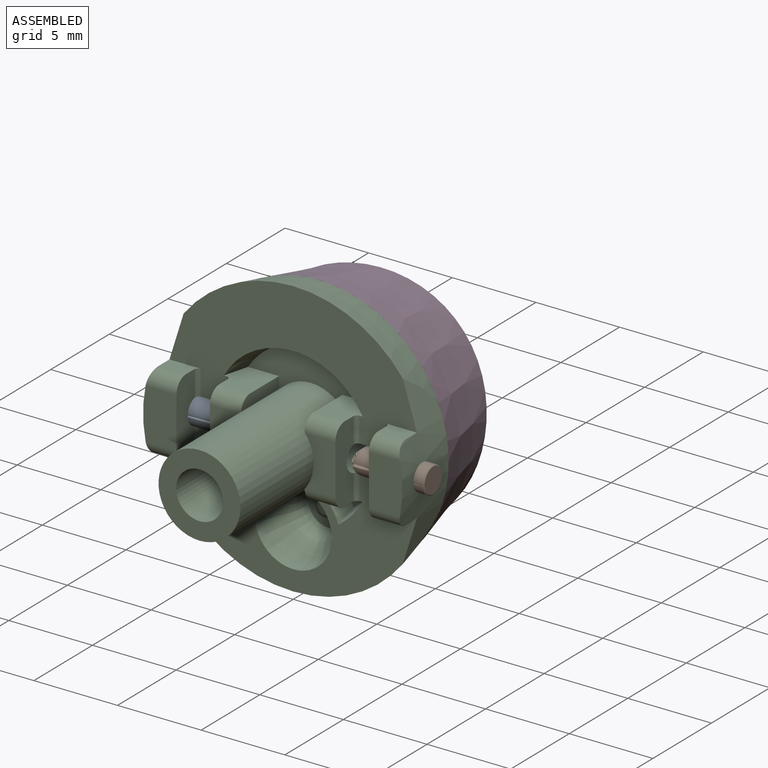
[diagram: assembled view]
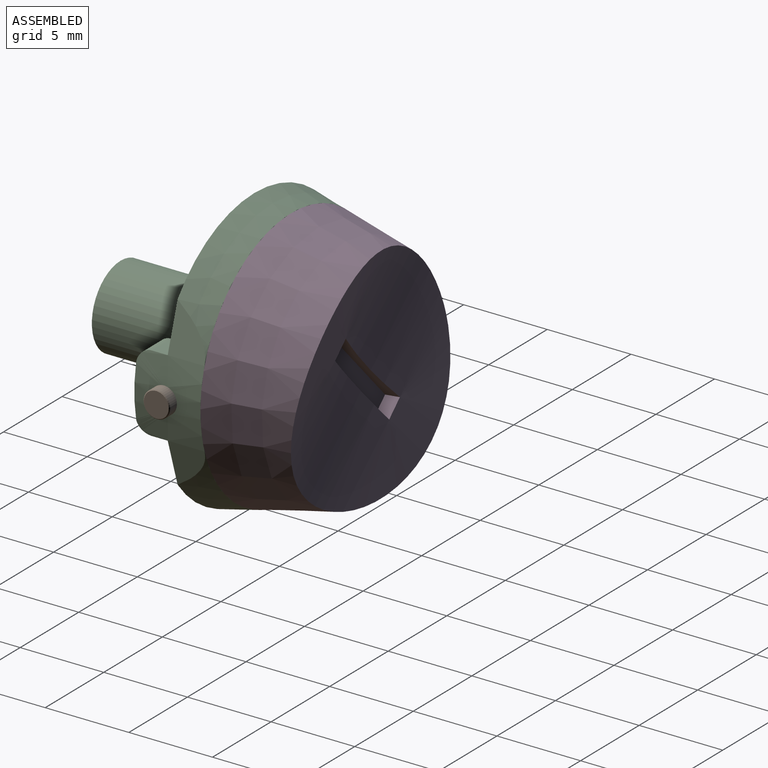
[diagram: assembled view, second angle]
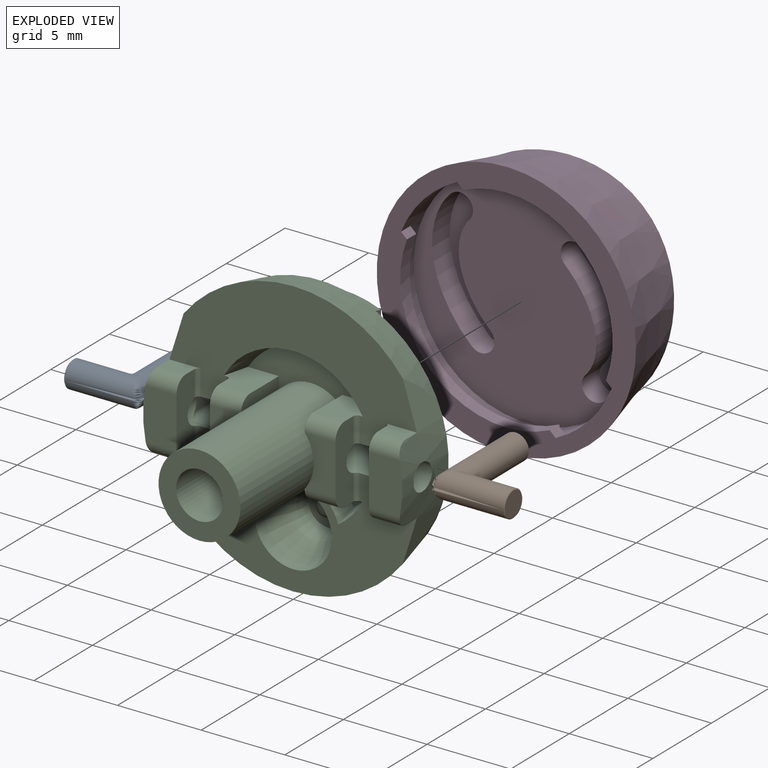
[diagram: exploded view]
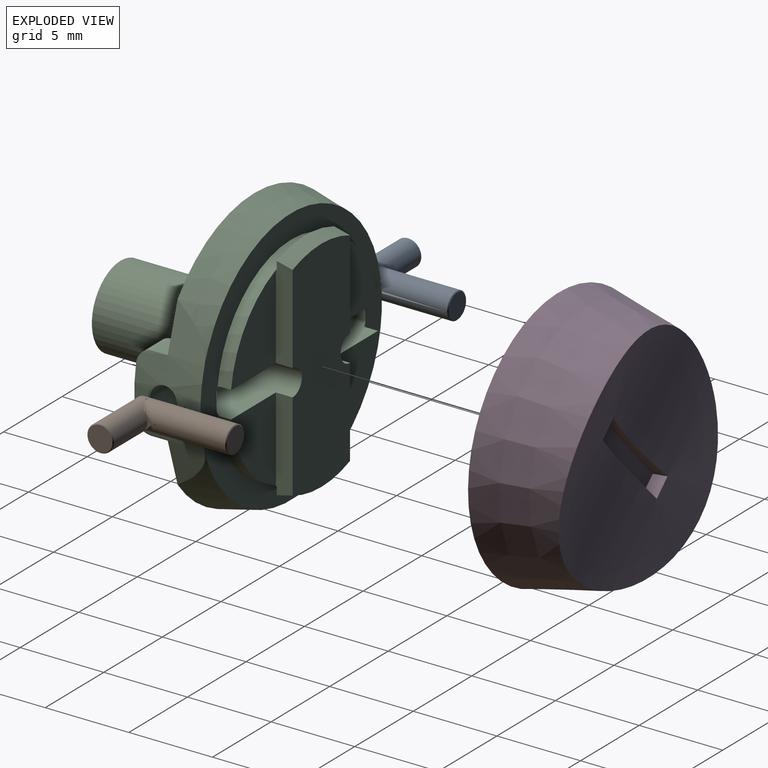
[diagram: exploded view, second angle]
ASSEMBLY  parts=4 mates=3
PART A: 15 faces, bbox 4.6x6.4x1.7 mm
  f0: cylinder r=0.79mm len=5.95mm, axis (0,1,0), area 26.2mm2, adj f1,f2,f3,f4,f9,f10,f11,f13
  f1: cylinder r=0.79mm len=0.18mm, axis (0,1,0), area 0mm2, adj f0,f5,f10
  f2: bspline ~0.96x0.96mm, area 0.3mm2, adj f0,f6,f10,f12
  f3: bspline ~0.96x0.96mm, area 0.3mm2, adj f0,f6,f11,f12
  f4: bspline ~0.35x0.35mm, area 0mm2, adj f0,f6,f11
  f5: bspline ~0.35x0.35mm, area 0mm2, adj f1,f6,f10
  f6: cylinder r=0.79mm len=4.14mm, axis (-1,0,0), area 17.5mm2, adj f2,f3,f4,f5,f9,f12,f14
  f7: plane 1.49x1.49mm, normal (-1,0,0), area 1.7mm2, adj f14
  f8: plane 1.49x1.49mm, normal (0,1,0), area 1.7mm2, adj f13
  f9: bspline ~1.59x0.79mm, area 0mm2, adj f0,f6
  f10: cylinder r=0.03mm len=0.47mm, axis (1,0,0), area 0mm2, adj f0,f1,f2,f5
  f11: cylinder r=0.03mm len=0.47mm, axis (1,0,0), area 0mm2, adj f0,f3,f4
  f12: plane 1.2x0.63mm, normal (-1,0,0), area 0.1mm2, adj f2,f3,f6
  f13: cone r=0.79mm half-angle=45deg, axis (0,-1,0), area 0.3mm2, adj f0,f8
  f14: cone r=0.79mm half-angle=45deg, axis (1,0,0), area 0.3mm2, adj f6,f7
PART B: same geometry as A
PART C: 124 faces, bbox 16.7x12.9x17.4 mm
  f0: plane 5.04x3.83mm, normal (0,1,0), area 13.3mm2, adj f1,f122,f123
  f1: plane 5.54x1mm, normal (1,0,0), area 5.4mm2, adj f0,f2,f3,f4,f117,f118,f119
  f2: plane 0.03x0.01mm, normal (0,-1,0), area 0mm2, adj f1,f3,f123
  f3: plane 0.05x0.02mm, normal (-0.92,0,0.39), area 0mm2, adj f1,f2,f4,f123
  f4: plane 5.35x1.4mm, normal (0,-1,0), area 2.2mm2, adj f1,f3,f5,f7,f116,f117,f123
  f5: plane 0.05x0.02mm, normal (0.92,0,0.39), area 0mm2, adj f4,f6,f7,f123
  f6: plane 0.03x0.01mm, normal (0,-1,0), area 0mm2, adj f5,f7,f123
  f7: plane 5.54x1mm, normal (-1,0,0), area 5.4mm2, adj f4,f5,f6,f8,f115,f117,f118
  f8: plane 5.04x3.83mm, normal (0,1,0), area 13.3mm2, adj f7,f9,f123
  f9: plane 3.83x2.77mm, normal (0,0,-1), area 10.1mm2, adj f8,f10,f113,f114,f115,f123
  f10: cylinder r=0.03mm len=3.92mm, axis (1,0,0), area 0.3mm2, adj f9,f11,f112,f114,f115
  f11: cylinder r=0.3mm len=0.19mm, axis (0,-1,0), area 0mm2, adj f10,f12,f112
  f12: cylinder r=0.79mm len=2.21mm, axis (-1,0,0), area 8.5mm2, adj f11,f13,f105,f106,f107,f108,f109,f110
  f13: cylinder r=0.3mm len=0.19mm, axis (0,1,0), area 0mm2, adj f12,f14,f110
  f14: cylinder r=0.03mm len=3.92mm, axis (1,0,0), area 0.3mm2, adj f13,f15,f105,f110,f115
  f15: plane 3.83x2.77mm, normal (0,0,1), area 10.1mm2, adj f14,f16,f103,f104,f105,f115
  f16: plane 5.04x3.83mm, normal (0,1,0), area 13.3mm2, adj f15,f17,f104
  f17: plane 5.54x1mm, normal (-1,0,0), area 5.4mm2, adj f16,f18,f19,f20,f102,f115,f118
  f18: plane 0.03x0.01mm, normal (0,-1,0), area 0mm2, adj f17,f19,f104
  f19: plane 0.05x0.02mm, normal (0.92,0,-0.39), area 0mm2, adj f17,f18,f20,f104
  f20: plane 5.35x1.4mm, normal (0,-1,0), area 2.2mm2, adj f17,f19,f21,f23,f101,f102,f104
  f21: plane 0.05x0.02mm, normal (-0.92,0,-0.39), area 0mm2, adj f20,f22,f23,f104
  f22: plane 0.03x0.01mm, normal (0,-1,0), area 0mm2, adj f21,f23,f104
  f23: plane 5.54x1mm, normal (1,0,0), area 5.4mm2, adj f20,f21,f22,f24,f102,f118,f119
  f24: plane 5.04x3.83mm, normal (0,1,0), area 13.3mm2, adj f23,f25,f104
  f25: plane 3.83x3mm, normal (0,0,1), area 11mm2, adj f24,f26,f89,f93,f97,f99,f100,f104
  f26: cylinder r=0.79mm len=2.21mm, axis (1,0,0), area 8.6mm2, adj f25,f27,f84,f85,f86,f87,f88,f100
  f27: cylinder r=0.25mm len=1.56mm, axis (0,0,-1), area 0.6mm2, adj f26,f28,f33,f88
  f28: plane 1.9x0.96mm, normal (0,0,1), area 1.6mm2, adj f27,f29,f33,f84,f88
  f29: cylinder r=0.79mm len=1.85mm, axis (-1,0,0), area 2.2mm2, adj f28,f30,f84,f88
  f30: plane 3.03x2mm, normal (0,-1,0), area 5.9mm2, adj f29,f31,f84,f88
  f31: cylinder r=0.79mm len=1.85mm, axis (1,0,0), area 2.2mm2, adj f30,f32,f84,f88
  f32: plane 1.9x0.96mm, normal (0,0,-1), area 1.6mm2, adj f31,f84,f87,f88,f89
  f33: plane 14.8x7.46mm, normal (0,-1,0), area 57.5mm2, adj f27,f28,f34,f67,f68,f69,f70,f71
  f34: cylinder r=0.25mm len=1.56mm, axis (0,0,-1), area 0.6mm2, adj f33,f35,f67,f93
  f35: plane 4.62x1.5mm, normal (1,0,0), area 6.1mm2, adj f34,f36,f37,f64,f65,f66,f67,f93
  f36: cylinder r=0.25mm len=1.56mm, axis (0,0,-1), area 0.6mm2, adj f35,f37,f89,f93
  f37: plane 2.47x2.26mm, normal (0,0,-1), area 4.9mm2, adj f35,f36,f38,f62,f63,f64,f89
  f38: cone r=4.75mm half-angle=12.8deg, axis (0,-1,0), area 3mm2, adj f37,f39,f62,f89
  f39: cylinder r=2.82mm len=1.74mm, axis (0,-1,0), area 3.3mm2, adj f38,f40,f62,f89
  f40: cylinder r=2.45mm len=9.5mm, axis (0,-1,0), area 120.9mm2, adj f39,f41,f50,f51,f52,f53,f54,f55
  f41: cylinder r=2.82mm len=1.74mm, axis (0,-1,0), area 3.3mm2, adj f40,f42,f50,f89
  f42: cone r=4.75mm half-angle=12.8deg, axis (0,-1,0), area 3mm2, adj f41,f43,f50,f89
  f43: plane 2.47x2.26mm, normal (0,0,-1), area 4.9mm2, adj f42,f44,f49,f50,f51,f52,f89
  f44: cylinder r=0.25mm len=1.56mm, axis (0,0,-1), area 0.6mm2, adj f43,f45,f49,f89
  f45: cylinder r=0.79mm len=2.05mm, axis (-1,0,0), area 4.1mm2, adj f44,f46,f47,f48,f49,f70,f110,f112
  f46: cylinder r=2.45mm len=0.33mm, axis (0,-1,0), area 0mm2, adj f45,f47,f115
  f47: bspline ~1.59x0.76mm, area 0.8mm2, adj f45,f46,f48,f115
  f48: cylinder r=2.45mm len=0.33mm, axis (0,-1,0), area 0mm2, adj f45,f47,f115
  f49: plane 4.62x1.5mm, normal (-1,0,0), area 6.1mm2, adj f43,f44,f45,f52,f53,f54,f69,f70
  f50: plane 2.62x2.04mm, normal (0,-1,0), area 1.7mm2, adj f40,f41,f42,f43,f51
  f51: plane 3.25x0.76mm, normal (1,0,0), area 2.3mm2, adj f40,f43,f50,f52
  f52: cylinder r=0.79mm len=1.85mm, axis (-1,0,0), area 2.3mm2, adj f40,f43,f49,f51,f53
  f53: plane 3.03x1.83mm, normal (0,-1,0), area 4.4mm2, adj f40,f49,f52,f54
  f54: cylinder r=0.79mm len=1.85mm, axis (1,0,0), area 2.3mm2, adj f40,f49,f53,f55,f69
  f55: plane 3.25x0.76mm, normal (1,0,0), area 2.3mm2, adj f40,f54,f56,f69
  f56: plane 7.51x2.86mm, normal (0,-1,0), area 11.7mm2, adj f40,f55,f57,f67,f68,f69
  f57: plane 3.25x0.76mm, normal (-1,0,0), area 2.3mm2, adj f40,f56,f66,f67
  f58: plane 4.9x4.9mm, normal (0,-1,0), area 12.7mm2, adj f40,f59
  f59: cylinder r=1.4mm len=9.4mm, axis (0,-1,0), area 82.7mm2, adj f58,f60
  f60: plane 2.8x2.8mm, normal (0,-1,0), area 5mm2, adj f59,f61
  f61: sphere r=0.6mm, area 2.3mm2, adj f60
  f62: plane 2.62x2.04mm, normal (0,-1,0), area 1.7mm2, adj f37,f38,f39,f40,f63
  f63: plane 3.25x0.76mm, normal (-1,0,0), area 2.3mm2, adj f37,f40,f62,f64
  f64: cylinder r=0.79mm len=1.85mm, axis (1,0,0), area 2.3mm2, adj f35,f37,f40,f63,f65
  f65: plane 3.03x1.83mm, normal (0,-1,0), area 4.4mm2, adj f35,f40,f64,f66
  f66: cylinder r=0.79mm len=1.85mm, axis (-1,0,0), area 2.3mm2, adj f35,f40,f57,f65,f67
  f67: plane 2.47x2.26mm, normal (0,0,1), area 4.9mm2, adj f33,f34,f35,f56,f57,f66,f68
  f68: cone r=4.75mm half-angle=12.8deg, axis (0,-1,0), area 14.7mm2, adj f33,f56,f67,f69
  f69: plane 2.47x2.26mm, normal (0,0,1), area 4.9mm2, adj f33,f49,f54,f55,f56,f68,f70
  f70: cylinder r=0.25mm len=1.56mm, axis (0,0,-1), area 0.6mm2, adj f33,f45,f49,f69
  f71: plane 1.9x0.96mm, normal (0,0,1), area 1.6mm2, adj f33,f72,f107,f108,f111
  f72: cylinder r=0.79mm len=1.85mm, axis (1,0,0), area 2.2mm2, adj f71,f73,f108,f111
  f73: plane 3.03x2mm, normal (0,-1,0), area 5.9mm2, adj f72,f74,f108,f111
  f74: cylinder r=0.79mm len=1.85mm, axis (-1,0,0), area 2.2mm2, adj f73,f75,f108,f111
  f75: plane 1.9x0.96mm, normal (0,0,-1), area 1.6mm2, adj f74,f89,f108,f109,f111
  f76: plane 3.61x3.11mm, normal (-0.95,0,0.3), area 4.1mm2, adj f33,f77,f111
  f77: cone r=7mm half-angle=12.8deg, axis (0,-1,0), area 39.4mm2, adj f33,f76,f78,f83
  f78: plane 15.5x15.5mm, normal (0,1,0), area 62.9mm2, adj f77,f79,f82,f84,f85,f86,f99,f100
  f79: cone r=7mm half-angle=12.8deg, axis (0,-1,0), area 39.4mm2, adj f78,f80,f81,f89
  f80: plane 3.61x3.11mm, normal (-0.95,0,-0.3), area 4.1mm2, adj f79,f89,f111
  f81: plane 3.61x3.11mm, normal (0.95,0,-0.3), area 4.1mm2, adj f79,f84,f89
  f82: cylinder r=0.1mm len=0.24mm, axis (-1,0,0), area 0mm2, adj f78,f85,f122,f123
  f83: plane 3.61x3.11mm, normal (0.95,0,0.3), area 4.1mm2, adj f33,f77,f84
  f84: cylinder r=7.75mm len=4.62mm, axis (0,1,0), area 15.9mm2, adj f26,f28,f29,f30,f31,f32,f78,f81
  f85: cylinder r=0.3mm len=2.3mm, axis (0,1,0), area 0.9mm2, adj f26,f78,f82,f86,f122
  f86: plane 1.58x0.99mm, normal (-1,0,0), area 1.4mm2, adj f26,f78,f85,f100
  f87: cylinder r=0.25mm len=1.56mm, axis (0,0,-1), area 0.6mm2, adj f26,f32,f88,f89
  f88: plane 4.62x1.5mm, normal (-1,0,0), area 6.1mm2, adj f26,f27,f28,f29,f30,f31,f32,f87
  f89: plane 14.8x7.46mm, normal (0,-1,0), area 51mm2, adj f25,f32,f36,f37,f38,f39,f40,f41
  f90: revolved ~4.6x4.6mm, area 36.4mm2, adj f89,f91
  f91: plane 2.4x2.4mm, normal (0,-1,0), area 3.4mm2, adj f90,f92
  f92: sphere r=0.6mm, area 2.3mm2, adj f91
  f93: cylinder r=0.79mm len=2.05mm, axis (1,0,0), area 4.1mm2, adj f25,f34,f35,f36,f94,f95,f96,f119
  f94: cylinder r=2.45mm len=0.33mm, axis (0,-1,0), area 0mm2, adj f93,f95,f119
  f95: bspline ~1.59x0.76mm, area 0.8mm2, adj f93,f94,f96,f119
  f96: cylinder r=2.45mm len=0.33mm, axis (0,-1,0), area 0mm2, adj f93,f95,f119
  f97: plane 0.05x0.03mm, normal (1,0,0), area 0mm2, adj f25,f98
  f98: cylinder r=0.03mm len=0.2mm, axis (-1,0,0), area 0mm2, adj f97,f119
  f99: cylinder r=0.1mm len=0.24mm, axis (1,0,0), area 0mm2, adj f25,f78,f100,f104
  f100: cylinder r=0.3mm len=2.3mm, axis (0,-1,0), area 0.9mm2, adj f25,f26,f78,f86,f99
  f101: revolved ~0.4x0.15mm, area 0.1mm2, adj f20
  f102: cone r=6.57mm half-angle=12.8deg, axis (0,-1,0), area 4.9mm2, adj f17,f20,f23,f118
  f103: cylinder r=0.1mm len=0.24mm, axis (-1,0,0), area 0mm2, adj f15,f78,f104,f105
  f104: cylinder r=6.33mm len=12.57mm, axis (0,1,0), area 14.9mm2, adj f15,f16,f18,f19,f20,f21,f22,f24
  f105: cylinder r=0.3mm len=2.11mm, axis (0,1,0), area 0.9mm2, adj f12,f14,f15,f78,f103,f106
  f106: plane 1.58x0.99mm, normal (1,0,0), area 1.4mm2, adj f12,f78,f105,f114
  f107: cylinder r=0.25mm len=1.56mm, axis (0,0,-1), area 0.6mm2, adj f12,f33,f71,f108
  f108: plane 4.62x1.5mm, normal (1,0,0), area 6.1mm2, adj f12,f71,f72,f73,f74,f75,f107,f109
  f109: cylinder r=0.25mm len=1.56mm, axis (0,0,-1), area 0.6mm2, adj f12,f75,f89,f108
  f110: plane 3.6x0.18mm, normal (0,0,1), area 0.6mm2, adj f12,f13,f14,f45,f89,f115
  f111: cylinder r=7.75mm len=4.62mm, axis (0,1,0), area 15.9mm2, adj f12,f71,f72,f73,f74,f75,f76,f78
  f112: plane 3.6x0.18mm, normal (0,0,-1), area 0.6mm2, adj f10,f11,f12,f33,f45,f115
  f113: cylinder r=0.1mm len=0.24mm, axis (1,0,0), area 0mm2, adj f9,f78,f114,f123
  f114: cylinder r=0.3mm len=2.11mm, axis (0,-1,0), area 0.9mm2, adj f9,f10,f12,f78,f106,f113
  f115: cylinder r=0.79mm len=4.5mm, axis (0,1,0), area 10.7mm2, adj f7,f9,f10,f14,f15,f17,f45,f46
  f116: revolved ~0.4x0.15mm, area 0.1mm2, adj f4
  f117: cone r=6.57mm half-angle=12.8deg, axis (0,-1,0), area 4.9mm2, adj f1,f4,f7,f118
  f118: plane 13.14x4.9mm, normal (0,1,0), area 60.9mm2, adj f1,f7,f17,f23,f102,f115,f117,f119
  f119: cylinder r=0.79mm len=4.5mm, axis (0,1,0), area 10.7mm2, adj f1,f23,f25,f93,f94,f95,f96,f98
  f120: cylinder r=0.03mm len=0.2mm, axis (-1,0,0), area 0mm2, adj f119,f121
  f121: plane 0.05x0.03mm, normal (1,0,0), area 0mm2, adj f120,f122
  f122: plane 3.83x3mm, normal (0,0,-1), area 11mm2, adj f0,f26,f33,f82,f85,f93,f119,f121
  f123: cylinder r=6.33mm len=12.57mm, axis (0,1,0), area 14.9mm2, adj f0,f2,f3,f4,f5,f6,f8,f9
PART D: 35 faces, bbox 15.8x5.6x15.8 mm
  f0: revolved ~0.38x0.14mm, area 0mm2, adj f3,f32,f34
  f1: revolved ~0.38x0.3mm, area 0.1mm2, adj f2,f5,f33
  f2: plane 12.85x4.51mm, normal (0,1,0), area 4mm2, adj f1,f5,f13,f17,f18,f20,f33
  f3: plane 12.98x4.64mm, normal (0,1,0), area 4mm2, adj f0,f4,f14,f17,f19,f21,f32,f34
  f4: revolved ~0.39x0.25mm, area 11222222.2mm2, adj f3,f32
  f5: revolved ~0.38x0.29mm, area 0.1mm2, adj f1,f2
  f6: bspline ~4.76x3.26mm, area 9.5mm2, adj f8,f9,f15,f25
  f7: bspline ~6.35x4.85mm, area 13.3mm2, adj f8,f9,f15,f25
  f8: cylinder r=0.79mm len=1.59mm, axis (0,-1,0), area 3.7mm2, adj f6,f7,f15,f25
  f9: cylinder r=0.79mm len=1.59mm, axis (0,-1,0), area 3.7mm2, adj f6,f7,f15,f25
  f10: cylinder r=0.79mm len=1.59mm, axis (0,-1,0), area 3.7mm2, adj f15,f22,f23,f24
  f11: cylinder r=0.79mm len=1.59mm, axis (0,-1,0), area 3.7mm2, adj f15,f22,f23,f24
  f12: plane 15.5x15.5mm, normal (0,-1,0), area 57.5mm2, adj f13,f14,f16,f17,f18,f19,f20,f21
  f13: cylinder r=6.35mm len=11.72mm, axis (0,1,0), area 11.9mm2, adj f2,f12,f18,f20
  f14: cylinder r=6.35mm len=11.72mm, axis (0,1,0), area 11.9mm2, adj f3,f12,f19,f21
  f15: plane 13.6x13.6mm, normal (0,-1,0), area 117.1mm2, adj f6,f7,f8,f9,f10,f11,f17,f22
  f16: cone r=7.75mm half-angle=12.8deg, axis (0,-1,0), area 219.6mm2, adj f12,f26
  f17: cylinder r=6.8mm len=13.6mm, axis (0,1,0), area 50.7mm2, adj f2,f3,f12,f15,f18,f19,f20,f21
  f18: plane 0.8x0.48mm, normal (0,0,-1), area 0.4mm2, adj f2,f12,f13,f17
  f19: plane 0.85x0.53mm, normal (0,0,1), area 0.4mm2, adj f3,f12,f14,f17,f34
  f20: plane 0.85x0.53mm, normal (0,0,-1), area 0.4mm2, adj f2,f12,f13,f17,f33
  f21: plane 0.8x0.48mm, normal (0,0,1), area 0.4mm2, adj f3,f12,f14,f17
  f22: bspline ~4.76x3.26mm, area 9.5mm2, adj f10,f11,f15,f24
  f23: bspline ~6.35x4.85mm, area 13.3mm2, adj f10,f11,f15,f24
  f24: plane 7.14x5.64mm, normal (0,-1,0), area 14mm2, adj f10,f11,f22,f23
  f25: plane 7.14x5.64mm, normal (0,-1,0), area 14mm2, adj f6,f7,f8,f9
  f26: cylinder r=21.92mm len=13.55mm, axis (1,0,0), area 132.3mm2, adj f16,f28,f29,f30,f31
  f27: plane 6.5x1mm, normal (0,1,0), area 6.5mm2, adj f28,f29,f30,f31
  f28: plane 6.84x0.85mm, normal (-0.99,0.17,0), area 3.9mm2, adj f26,f27,f29,f31
  f29: plane 1.26x0.76mm, normal (0,0.17,-0.99), area 0.9mm2, adj f26,f27,f28,f30
  f30: plane 6.84x0.85mm, normal (0.99,0.17,0), area 3.9mm2, adj f26,f27,f29,f31
  f31: plane 1.26x0.76mm, normal (0,0.17,0.99), area 0.9mm2, adj f26,f27,f28,f30
  f32: bspline ~0.3x0.09mm, area 0mm2, adj f0,f3,f4
  f33: bspline ~6.05x4.44mm, area 3.4mm2, adj f1,f2,f20
  f34: bspline ~6.05x4.44mm, area 3.4mm2, adj f0,f3,f19
PLACE A t=(0.88,0,0)mm
PLACE B rot(axis=(0,-1,0),180deg) t=(-0.88,0,0)mm
PLACE C at identity fixed
PLACE D rot(axis=(0,1,0),43.2deg) t=(0,0,0)mm
MATE slider C.f12 <-> A.f6  axis (-1,0,0) through (-7.76,0,0)mm
MATE revolute C.f38 <-> D.f13  axis (0,1,0) through (0,2.2,0)mm
MATE slider C.f26 <-> B.f6  axis (1,0,0) through (7.76,0,0)mm
